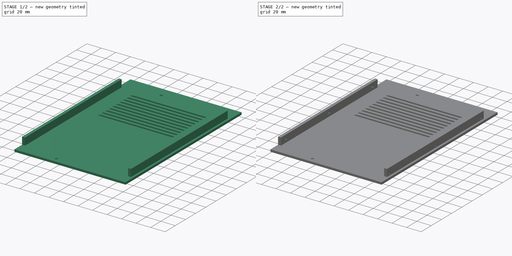
[diagram: build sequence overview — one tinted view per stage of 2, left to right]
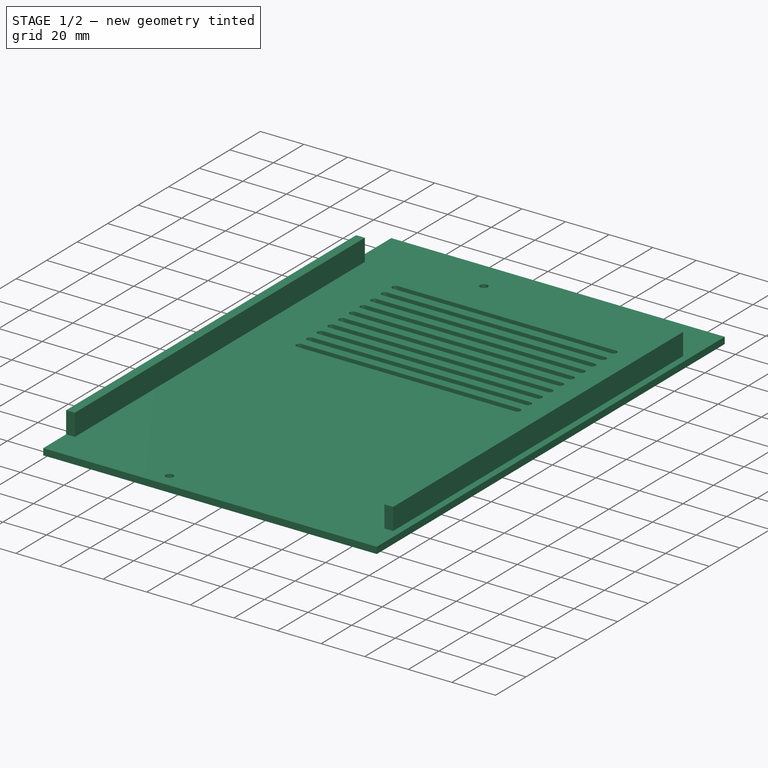
[diagram: stage 1 of 2 — iso view after this stage's code; geometry added in this stage tinted green]
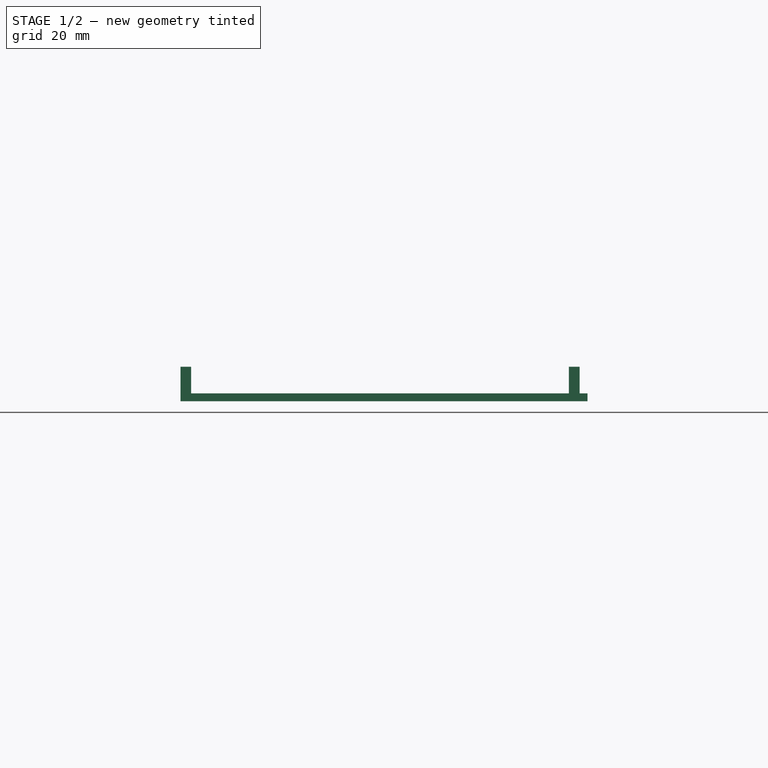
[diagram: stage 1 of 2 — front view after this stage's code; geometry added in this stage tinted green]
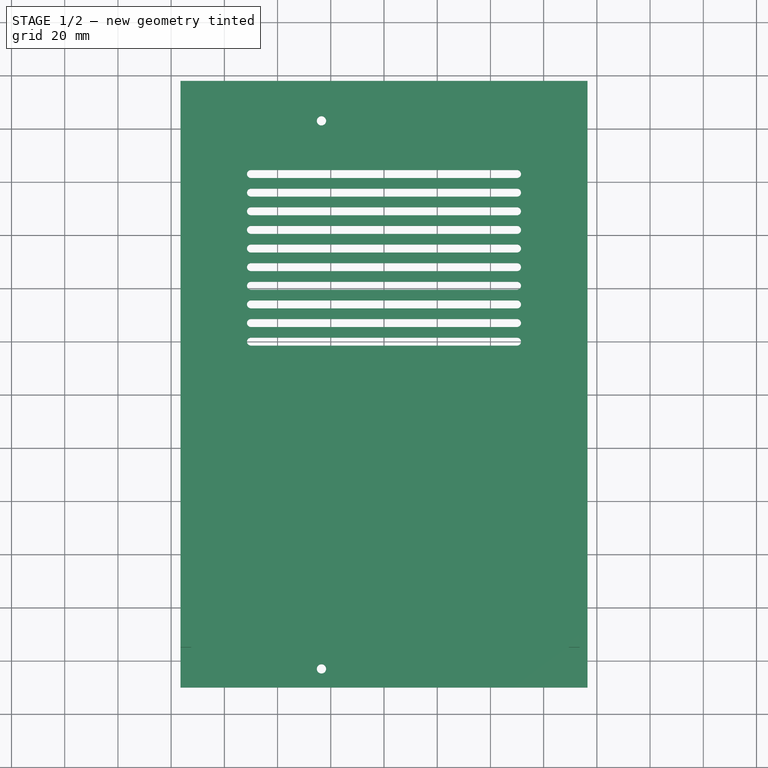
[diagram: stage 1 of 2 — top view after this stage's code; geometry added in this stage tinted green]
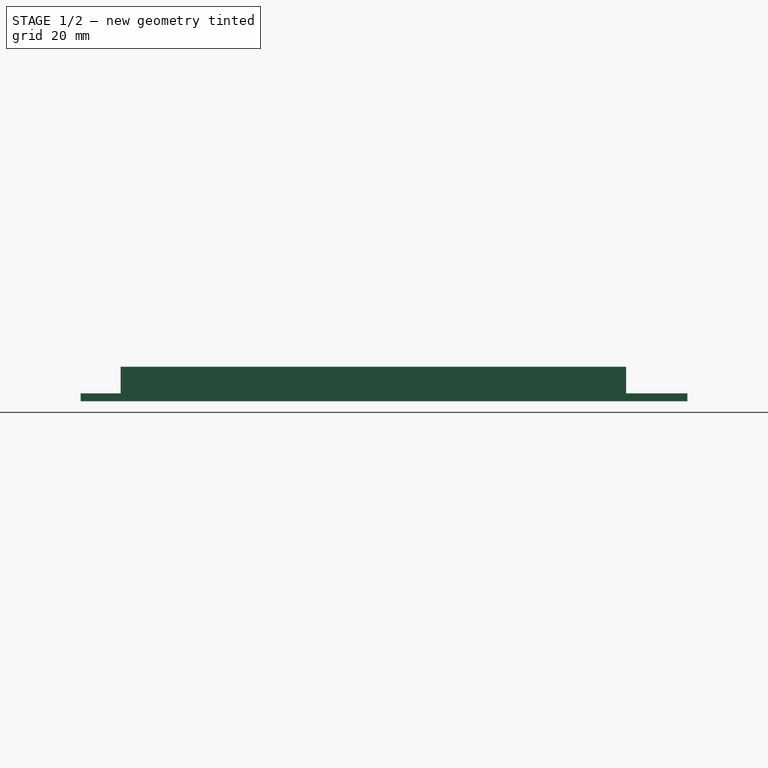
[diagram: stage 1 of 2 — right view after this stage's code; geometry added in this stage tinted green]
FCSTD DOCUMENT  (FreeCAD 0.19R24267 +99 (Git))
Label: T41 Top Right Panel Vents V006
License: All rights reserved
LicenseURL: http://en.wikipedia.org/wiki/All_rights_reserved
objects: Sketcher::SketchObject×4, PartDesign::Pad×2, PartDesign::Pocket×2, PartDesign::Body×1
note: 13 computed .brp shape members not serialized (recipe doc carries the construction recipe); baked Part::Feature solids carry a one-line shape summary decoded from their .brp

FEATURE [Sketcher::SketchObject] Sketch
  FullyConstrained = true
  MapMode = 5
  Support = -> [XY_Plane]
  sketch-geometry (46):
    g0: LineSegment StartX=-76.5 StartY=118 StartZ=0 EndX=76.5 EndY=118 EndZ=0
    g1: LineSegment StartX=76.5 StartY=118 StartZ=0 EndX=76.5 EndY=-110 EndZ=0
    g2: LineSegment StartX=76.5 StartY=-110 StartZ=0 EndX=-76.5 EndY=-110 EndZ=0
    g3: LineSegment StartX=-76.5 StartY=-110 StartZ=0 EndX=-76.5 EndY=118 EndZ=0
    g4: Circle CenterX=-23.5 CenterY=103 CenterZ=0 NormalX=0 NormalY=0 NormalZ=1 AngleXU=0 Radius=1.75
    g5: Circle CenterX=-23.5 CenterY=-103 CenterZ=0 NormalX=0 NormalY=0 NormalZ=1 AngleXU=0 Radius=1.75
    g6: ArcOfCircle CenterX=-50 CenterY=83 CenterZ=0 NormalX=0 NormalY=0 NormalZ=1 AngleXU=0 Radius=1.5 StartAngle=1.5708 EndAngle=4.71239
    g7: ArcOfCircle CenterX=50 CenterY=83 CenterZ=0 NormalX=0 NormalY=0 NormalZ=1 AngleXU=0 Radius=1.5 StartAngle=4.71239 EndAngle=7.85398
    g8: LineSegment StartX=-50 StartY=81.5 StartZ=0 EndX=50 EndY=81.5 EndZ=0
    g9: LineSegment StartX=-50 StartY=84.5 StartZ=0 EndX=50 EndY=84.5 EndZ=0
    g10: ArcOfCircle CenterX=-50 CenterY=76 CenterZ=0 NormalX=0 NormalY=0 NormalZ=1 AngleXU=0 Radius=1.5 StartAngle=1.5708 EndAngle=4.71239
    g11: ArcOfCircle CenterX=50 CenterY=76 CenterZ=0 NormalX=0 NormalY=0 NormalZ=1 AngleXU=0 Radius=1.5 StartAngle=4.71239 EndAngle=7.85398
    g12: LineSegment StartX=-50 StartY=74.5 StartZ=0 EndX=50 EndY=74.5 EndZ=0
    g13: LineSegment StartX=-50 StartY=77.5 StartZ=0 EndX=50 EndY=77.5 EndZ=0
    g14: ArcOfCircle CenterX=-50 CenterY=69 CenterZ=0 NormalX=0 NormalY=0 NormalZ=1 AngleXU=0 Radius=1.5 StartAngle=1.5708 EndAngle=4.71239
    g15: ArcOfCircle CenterX=50 CenterY=69 CenterZ=0 NormalX=0 NormalY=0 NormalZ=1 AngleXU=0 Radius=1.5 StartAngle=4.71239 EndAngle=7.85398
    g16: LineSegment StartX=-50 StartY=67.5 StartZ=0 EndX=50 EndY=67.5 EndZ=0
    g17: LineSegment StartX=-50 StartY=70.5 StartZ=0 EndX=50 EndY=70.5 EndZ=0
    g18: ArcOfCircle CenterX=-50 CenterY=62 CenterZ=0 NormalX=0 NormalY=0 NormalZ=1 AngleXU=0 Radius=1.5 StartAngle=1.5708 EndAngle=4.71239
    g19: ArcOfCircle CenterX=50 CenterY=62 CenterZ=0 NormalX=0 NormalY=0 NormalZ=1 AngleXU=0 Radius=1.5 StartAngle=4.71239 EndAngle=7.85398
    g20: LineSegment StartX=-50 StartY=60.5 StartZ=0 EndX=50 EndY=60.5 EndZ=0
    g21: LineSegment StartX=-50 StartY=63.5 StartZ=0 EndX=50 EndY=63.5 EndZ=0
    g22: ArcOfCircle CenterX=-50 CenterY=55 CenterZ=0 NormalX=0 NormalY=0 NormalZ=1 AngleXU=0 Radius=1.5 StartAngle=1.5708 EndAngle=4.71239
    g23: ArcOfCircle CenterX=50 CenterY=55 CenterZ=0 NormalX=0 NormalY=0 NormalZ=1 AngleXU=0 Radius=1.5 StartAngle=4.71239 EndAngle=7.85398
    g24: LineSegment StartX=-50 StartY=53.5 StartZ=0 EndX=50 EndY=53.5 EndZ=0
    g25: LineSegment StartX=-50 StartY=56.5 StartZ=0 EndX=50 EndY=56.5 EndZ=0
    g26: ArcOfCircle CenterX=-50 CenterY=48 CenterZ=0 NormalX=0 NormalY=0 NormalZ=1 AngleXU=0 Radius=1.5 StartAngle=1.5708 EndAngle=4.71239
    g27: ArcOfCircle CenterX=50 CenterY=48 CenterZ=0 NormalX=0 NormalY=0 NormalZ=1 AngleXU=0 Radius=1.5 StartAngle=4.71239 EndAngle=7.85398
    g28: LineSegment StartX=-50 StartY=46.5 StartZ=0 EndX=50 EndY=46.5 EndZ=0
    g29: LineSegment StartX=-50 StartY=49.5 StartZ=0 EndX=50 EndY=49.5 EndZ=0
    g30: ArcOfCircle CenterX=-50 CenterY=41 CenterZ=0 NormalX=0 NormalY=0 NormalZ=1 AngleXU=0 Radius=1.5 StartAngle=1.5708 EndAngle=4.71239
    g31: ArcOfCircle CenterX=50 CenterY=41 CenterZ=0 NormalX=0 NormalY=0 NormalZ=1 AngleXU=0 Radius=1.5 StartAngle=4.71239 EndAngle=7.85398
    g32: LineSegment StartX=-50 StartY=39.5 StartZ=0 EndX=50 EndY=39.5 EndZ=0
    g33: LineSegment StartX=-50 StartY=42.5 StartZ=0 EndX=50 EndY=42.5 EndZ=0
    g34: ArcOfCircle CenterX=-50 CenterY=34 CenterZ=0 NormalX=0 NormalY=0 NormalZ=1 AngleXU=0 Radius=1.5 StartAngle=1.5708 EndAngle=4.71239
    g35: ArcOfCircle CenterX=50 CenterY=34 CenterZ=0 NormalX=0 NormalY=0 NormalZ=1 AngleXU=0 Radius=1.5 StartAngle=4.71239 EndAngle=7.85398
    g36: LineSegment StartX=-50 StartY=32.5 StartZ=0 EndX=50 EndY=32.5 EndZ=0
    g37: LineSegment StartX=-50 StartY=35.5 StartZ=0 EndX=50 EndY=35.5 EndZ=0
    g38: ArcOfCircle CenterX=-50 CenterY=27 CenterZ=0 NormalX=0 NormalY=0 NormalZ=1 AngleXU=0 Radius=1.5 StartAngle=1.5708 EndAngle=4.71239
    g39: ArcOfCircle CenterX=50 CenterY=27 CenterZ=0 NormalX=0 NormalY=0 NormalZ=1 AngleXU=0 Radius=1.5 StartAngle=4.71239 EndAngle=7.85398
    g40: LineSegment StartX=-50 StartY=25.5 StartZ=0 EndX=50 EndY=25.5 EndZ=0
    g41: LineSegment StartX=-50 StartY=28.5 StartZ=0 EndX=50 EndY=28.5 EndZ=0
    g42: ArcOfCircle CenterX=-50 CenterY=20 CenterZ=0 NormalX=0 NormalY=0 NormalZ=1 AngleXU=0 Radius=1.5 StartAngle=1.5708 EndAngle=4.71239
    g43: ArcOfCircle CenterX=50 CenterY=20 CenterZ=0 NormalX=0 NormalY=0 NormalZ=1 AngleXU=0 Radius=1.5 StartAngle=4.71239 EndAngle=7.85398
    g44: LineSegment StartX=-50 StartY=18.5 StartZ=0 EndX=50 EndY=18.5 EndZ=0
    g45: LineSegment StartX=-50 StartY=21.5 StartZ=0 EndX=50 EndY=21.5 EndZ=0
  constraints (119):
    c: Coincident(g0,g1)
    c: Coincident(g1,g2)
    c: Coincident(g2,g3)
    c: Coincident(g3,g0)
    c: Horizontal(g0)
    c: Vertical(g3)
    c: DistanceX(g0,g0) = 153
    c: DistanceY(g3,g3) = 228
    c: Symmetric(g2,g1,g-2)
    c: Symmetric(g0,g1,g-1)
    c: Equal(g4,g5)
    c: Diameter(g4) = 3.5
    c: DistanceX(g4,g0) = 100
    c: DistanceY(g4,g0) = 15
    c: DistanceY(g2,g5) = 7
    c: Vertical(g5,g4)
    c: Tangent(g6,g9) = 1.5708
    c: Tangent(g6,g8) = -1.5708
    c: Tangent(g8,g7) = -1.5708
    c: Tangent(g9,g7) = 1.5708
    c: Horizontal(g8)
    c: Equal(g6,g7)
    c: DistanceX(g8,g8) = 100
    c: DistanceY(g6,g6) = 3
    c: Tangent(g10,g13) = 1.5708
    c: Tangent(g10,g12) = -1.5708
    c: Tangent(g12,g11) = -1.5708
    c: Tangent(g13,g11) = 1.5708
    c: Horizontal(g12)
    c: Equal(g10,g11)
    c: DistanceX(g12,g12) = 100
    c: DistanceY(g10,g10) = 3
    c: Tangent(g14,g17) = 1.5708
    c: Tangent(g14,g16) = -1.5708
    c: Tangent(g16,g15) = -1.5708
    c: Tangent(g17,g15) = 1.5708
    c: Horizontal(g16)
    c: Equal(g14,g15)
    c: DistanceX(g16,g16) = 100
    c: DistanceY(g14,g14) = 3
    c: DistanceY(g14,g10) = 7
    c: Vertical(g14,g10)
    c: Tangent(g18,g21) = 1.5708
    c: Tangent(g18,g20) = -1.5708
    c: Tangent(g20,g19) = -1.5708
    c: Tangent(g21,g19) = 1.5708
    c: Horizontal(g20)
    c: Equal(g18,g19)
    c: DistanceX(g20,g20) = 100
    c: DistanceY(g18,g18) = 3
    c: Tangent(g22,g25) = 1.5708
    c: Tangent(g22,g24) = -1.5708
    c: Tangent(g24,g23) = -1.5708
    c: Tangent(g25,g23) = 1.5708
    c: Horizontal(g24)
    c: Equal(g22,g23)
    c: DistanceX(g24,g24) = 100
    c: DistanceY(g22,g22) = 3
    c: DistanceY(g22,g18) = 7
    c: Vertical(g22,g18)
    c: Tangent(g26,g29) = 1.5708
    c: Tangent(g26,g28) = -1.5708
    c: Tangent(g28,g27) = -1.5708
    c: Tangent(g29,g27) = 1.5708
    c: Horizontal(g28)
    c: Equal(g26,g27)
    c: DistanceX(g28,g28) = 100
    c: DistanceY(g26,g26) = 3
    c: Tangent(g30,g33) = 1.5708
    c: Tangent(g30,g32) = -1.5708
    c: Tangent(g32,g31) = -1.5708
    c: Tangent(g33,g31) = 1.5708
    c: Horizontal(g32)
    c: Equal(g30,g31)
    c: DistanceX(g32,g32) = 100
    c: DistanceY(g30,g30) = 3
    c: DistanceY(g30,g26) = 7
    c: Vertical(g30,g26)
    c: DistanceY(g18,g14) = 7
    c: DistanceY(g10,g6) = 7
    c: DistanceY(g26,g22) = 7
    c: Tangent(g34,g37) = 1.5708
    c: Tangent(g34,g36) = -1.5708
    c: Tangent(g36,g35) = -1.5708
    c: Tangent(g37,g35) = 1.5708
    c: Horizontal(g36)
    c: Equal(g34,g35)
    c: DistanceX(g36,g36) = 100
    c: DistanceY(g34,g34) = 3
    c: Tangent(g38,g41) = 1.5708
    c: Tangent(g38,g40) = -1.5708
    c: Tangent(g40,g39) = -1.5708
    c: Tangent(g41,g39) = 1.5708
    c: Horizontal(g40)
    c: Equal(g38,g39)
    c: DistanceX(g40,g40) = 100
    c: DistanceY(g38,g38) = 3
    c: DistanceY(g38,g34) = 7
    c: Vertical(g38,g34)
    c: Vertical(g34,g30)
    c: Vertical(g26,g22)
    c: Vertical(g18,g14)
    c: Vertical(g10,g6)
    c: DistanceY(g34,g30) = 7
    c: Tangent(g42,g45) = 1.5708
    c: Tangent(g42,g44) = -1.5708
    c: Tangent(g44,g43) = -1.5708
    c: Tangent(g45,g43) = 1.5708
    c: Horizontal(g44)
    c: DistanceX(g44,g44) = 100
    c: DistanceY(g42,g42) = 3
    c: DistanceY(g42,g38) = 7
    c: Vertical(g42,g38)
    c: Symmetric(g42,g43,g-2)
    c: DistanceY(g-1,g43) = 20
    c: DistanceY(g2,g-1) = 110
    c: DistanceX(g0,g-1) = 76.5
    c: DistanceX(g2,g1) = 153
    c: DistanceY(g1,g0) = 228
FEATURE [PartDesign::Pad] Pad
  Direction = (1,1,1)
  Length = 3
  Length2 = 100
  Profile = -> Sketch
  Type = 0
FEATURE [Sketcher::SketchObject] Sketch001
  AttachmentOffset = pos=(0,0,3) rot=(0,0,1;0rad)
  FullyConstrained = true
  MapMode = 5
  Placement = pos=(0,0,3) rot=(0,0,1;0rad)
  Support = -> [XY_Plane]
  sketch-geometry (8):
    g0: LineSegment StartX=-76.5 StartY=95 StartZ=0 EndX=-72.5 EndY=95 EndZ=0
    g1: LineSegment StartX=-72.5 StartY=95 StartZ=0 EndX=-72.5 EndY=-95 EndZ=0
    g2: LineSegment StartX=-72.5 StartY=-95 StartZ=0 EndX=-76.5 EndY=-95 EndZ=0
    g3: LineSegment StartX=-76.5 StartY=-95 StartZ=0 EndX=-76.5 EndY=95 EndZ=0
    g4: LineSegment StartX=69.5 StartY=95 StartZ=0 EndX=73.5 EndY=95 EndZ=0
    g5: LineSegment StartX=73.5 StartY=95 StartZ=0 EndX=73.5 EndY=-95 EndZ=0
    g6: LineSegment StartX=73.5 StartY=-95 StartZ=0 EndX=69.5 EndY=-95 EndZ=0
    g7: LineSegment StartX=69.5 StartY=-95 StartZ=0 EndX=69.5 EndY=95 EndZ=0
  constraints (22):
    c: Coincident(g0,g1)
    c: Coincident(g1,g2)
    c: Coincident(g2,g3)
    c: Coincident(g3,g0)
    c: Horizontal(g0)
    c: Horizontal(g2)
    c: Vertical(g3)
    c: Coincident(g4,g5)
    c: Coincident(g5,g6)
    c: Coincident(g6,g7)
    c: Coincident(g7,g4)
    c: Horizontal(g4)
    c: Horizontal(g6)
    c: Vertical(g5)
    c: DistanceX(g0,g0) = 4
    c: DistanceX(g4,g4) = 4
    c: DistanceX(g2) = -76.5
    c: DistanceY(g1,g1) = 190
    c: Symmetric(g0,g1,g-1)
    c: DistanceX(g-1,g4) = 73.5
    c: DistanceY(g5,g5) = 190
    c: Symmetric(g4,g6,g-1)
FEATURE [PartDesign::Pad] Pad001  label="Flange"
  BaseFeature = -> Pad
  Direction = (1,1,1)
  Length = 10
  Length2 = 100
  Profile = -> Sketch001
  Type = 0
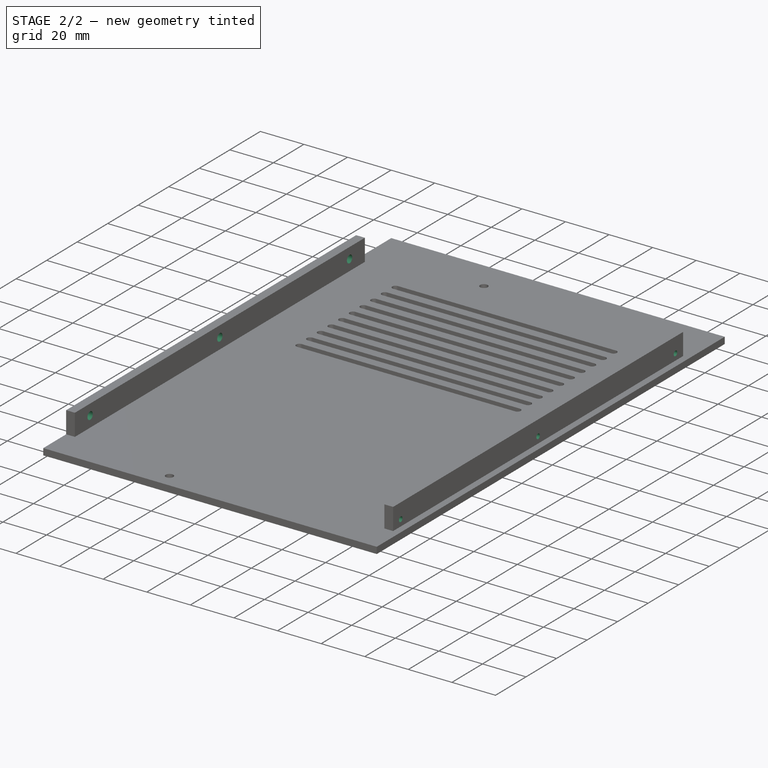
[diagram: stage 2 of 2 — iso view after this stage's code; geometry added in this stage tinted green]
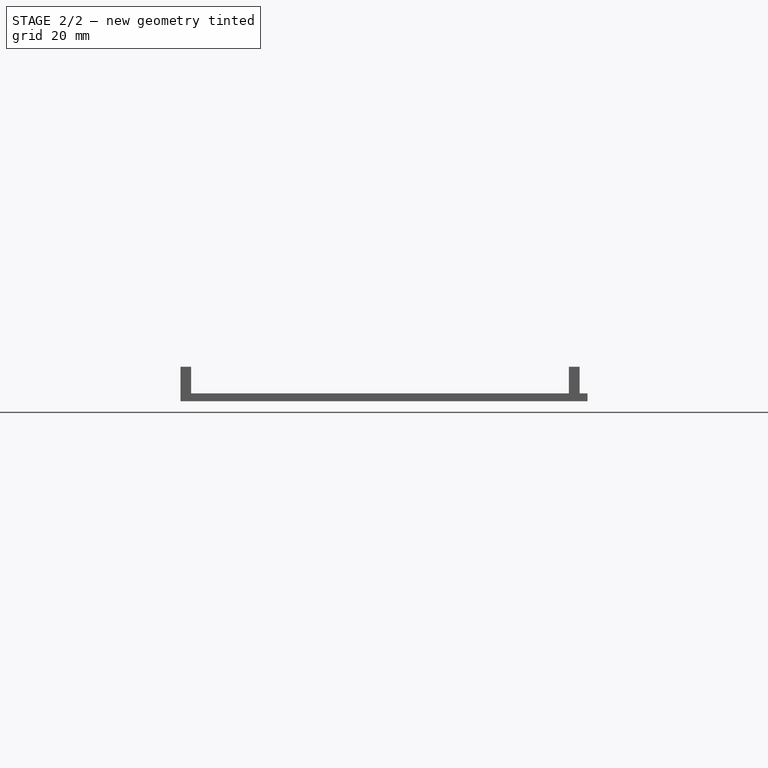
[diagram: stage 2 of 2 — front view after this stage's code; geometry added in this stage tinted green]
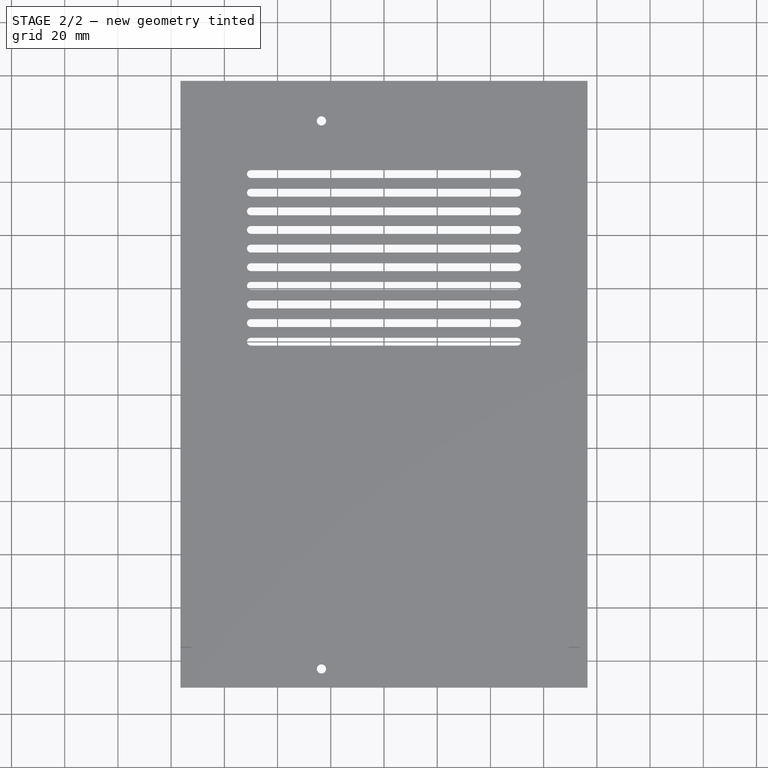
[diagram: stage 2 of 2 — top view after this stage's code; geometry added in this stage tinted green]
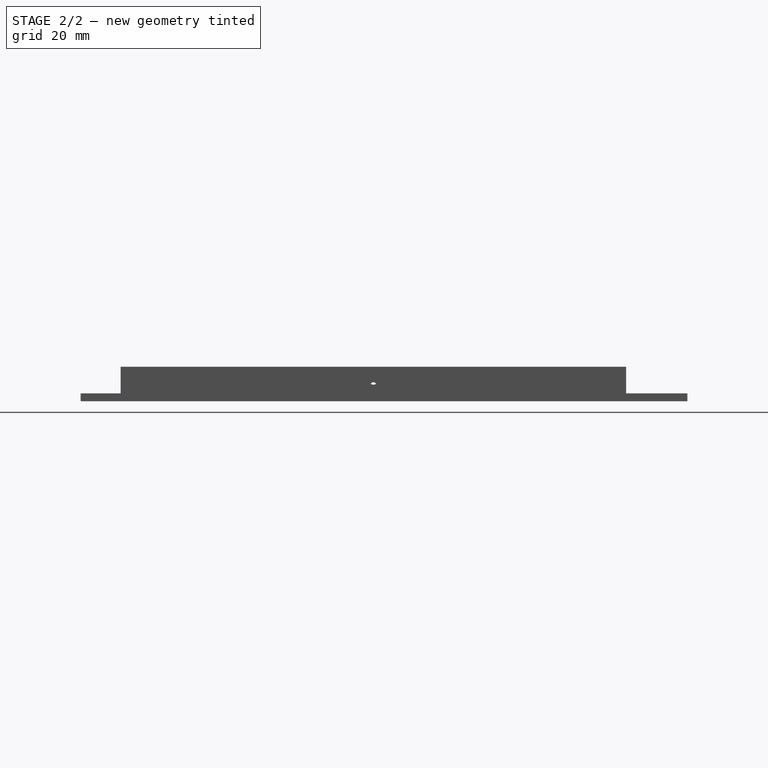
[diagram: stage 2 of 2 — right view after this stage's code; geometry added in this stage tinted green]
FEATURE [Sketcher::SketchObject] Sketch002
  AttachmentOffset = pos=(0,0,-76.5) rot=(0,0,1;0rad)
  FullyConstrained = true
  MapMode = 5
  Placement = pos=(-76.5,1.7e-14,-1.7e-14) rot=(0.57735,0.57735,0.57735;2.0944rad)
  Support = -> [YZ_Plane]
  sketch-geometry (3):
    g0: Circle CenterX=-85 CenterY=8 CenterZ=0 NormalX=0 NormalY=0 NormalZ=1 AngleXU=0 Radius=1.75
    g1: Circle CenterX=0 CenterY=8 CenterZ=0 NormalX=0 NormalY=0 NormalZ=1 AngleXU=0 Radius=1.75
    g2: Circle CenterX=85 CenterY=8 CenterZ=0 NormalX=0 NormalY=0 NormalZ=1 AngleXU=0 Radius=1.75
  constraints (9):
    c: Equal(g2,g1)
    c: Equal(g2,g0)
    c: Diameter(g2) = 3.5
    c: PointOnObject(g1,g-2)
    c: DistanceX(g-1,g2) = 85
    c: DistanceX(g0,g1) = 85
    c: DistanceY(g-1,g0) = 8
    c: DistanceY(g-1,g1) = 8
    c: DistanceY(g-1,g2) = 8
FEATURE [PartDesign::Pocket] Pocket  label="Center holes"
  BaseFeature = -> Pad001
  Length = 5
  Length2 = 100
  Profile = -> Sketch002
  Reversed = true
  Type = 0
FEATURE [Sketcher::SketchObject] Sketch003
  AttachmentOffset = pos=(0,0,73.5) rot=(0,0,1;0rad)
  FullyConstrained = true
  MapMode = 5
  Placement = pos=(73.5,-1.63e-14,1.63e-14) rot=(0.57735,0.57735,0.57735;2.0944rad)
  Support = -> [YZ_Plane]
  sketch-geometry (3):
    g0: Circle CenterX=-90 CenterY=6 CenterZ=0 NormalX=0 NormalY=0 NormalZ=1 AngleXU=0 Radius=1.15
    g1: Circle CenterX=0 CenterY=6 CenterZ=0 NormalX=0 NormalY=0 NormalZ=1 AngleXU=0 Radius=1.15
    g2: Circle CenterX=90 CenterY=6 CenterZ=0 NormalX=0 NormalY=0 NormalZ=1 AngleXU=0 Radius=1.15
  constraints (9):
    c: DistanceX(g0,g-1) = 90
    c: PointOnObject(g1,g-2)
    c: DistanceX(g-1,g2) = 90
    c: DistanceY(g-1,g1) = 6
    c: Horizontal(g1,g0)
    c: Horizontal(g1,g2)
    c: Equal(g0,g1)
    c: Equal(g0,g2)
    c: Diameter(g0) = 2.3
FEATURE [PartDesign::Pocket] Pocket001  label="Side holes"
  BaseFeature = -> Pocket
  Length = 5
  Length2 = 100
  Profile = -> Sketch003
  Type = 0
FEATURE [PartDesign::Body] Body
  Group = -> [Sketch,Pad,Sketch001,Pad001,Sketch002,Pocket,Sketch003,Pocket001]
  Origin = -> Origin
  Tip = -> Pocket001
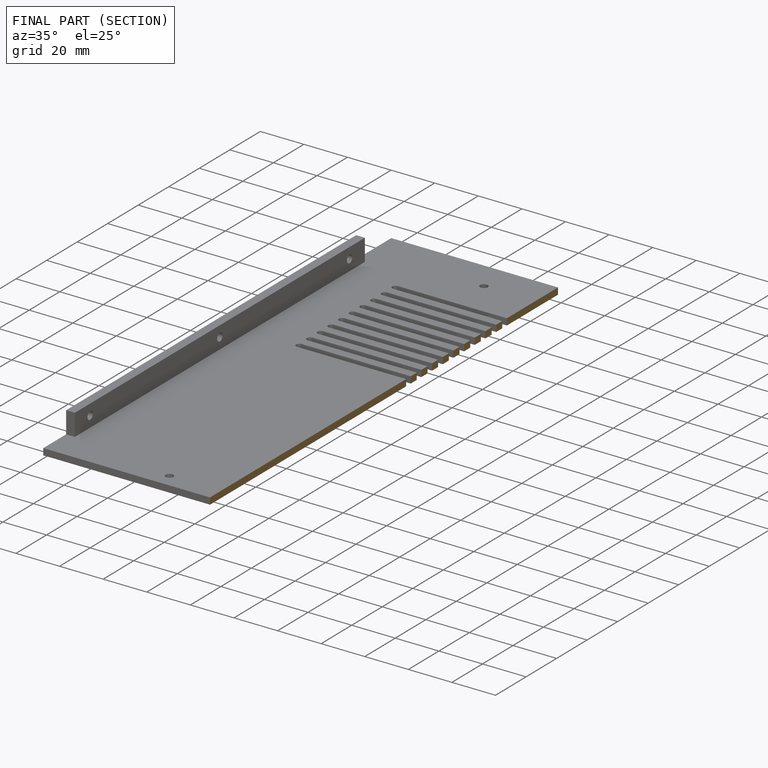
[diagram: finished part — half-section view (interior)]
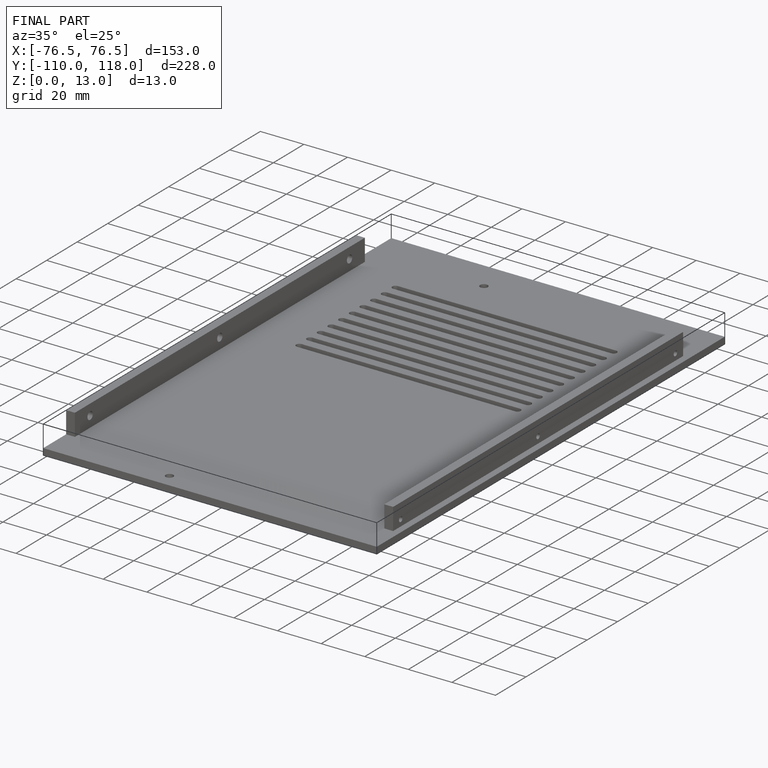
[diagram: finished part — iso view with bounding-box wireframe]
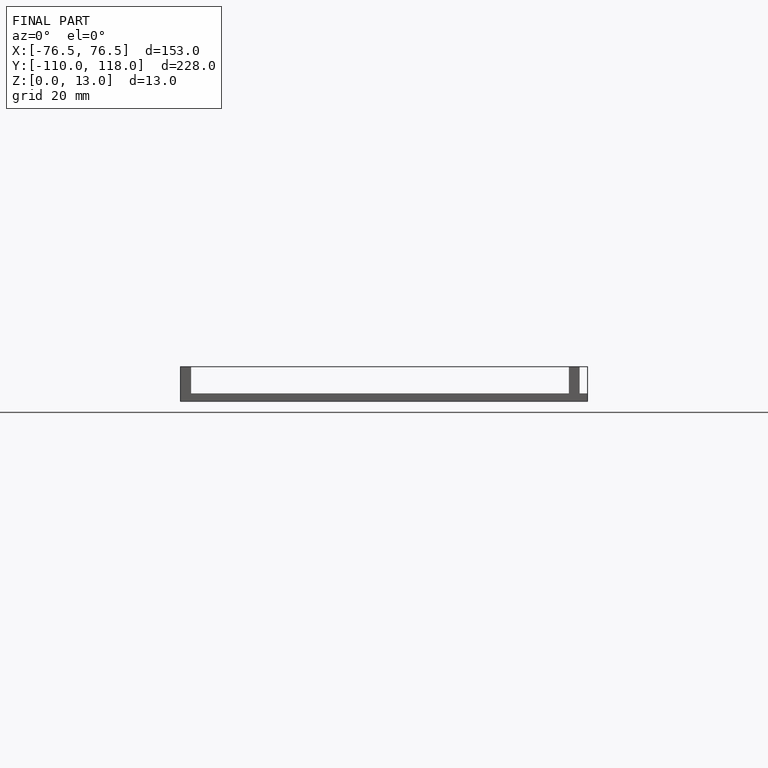
[diagram: finished part — front view with bounding-box wireframe]
